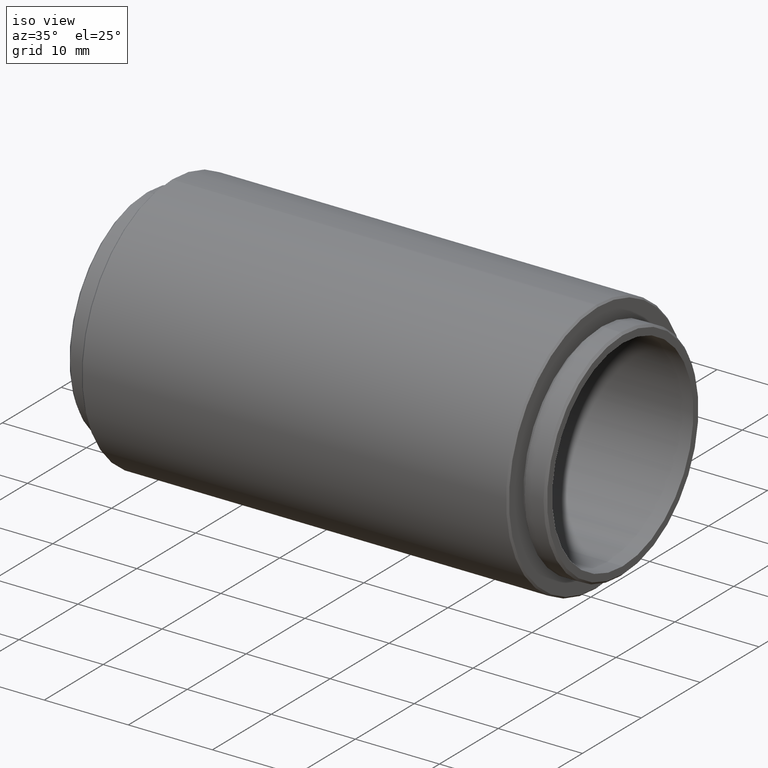
[diagram: clean part render]
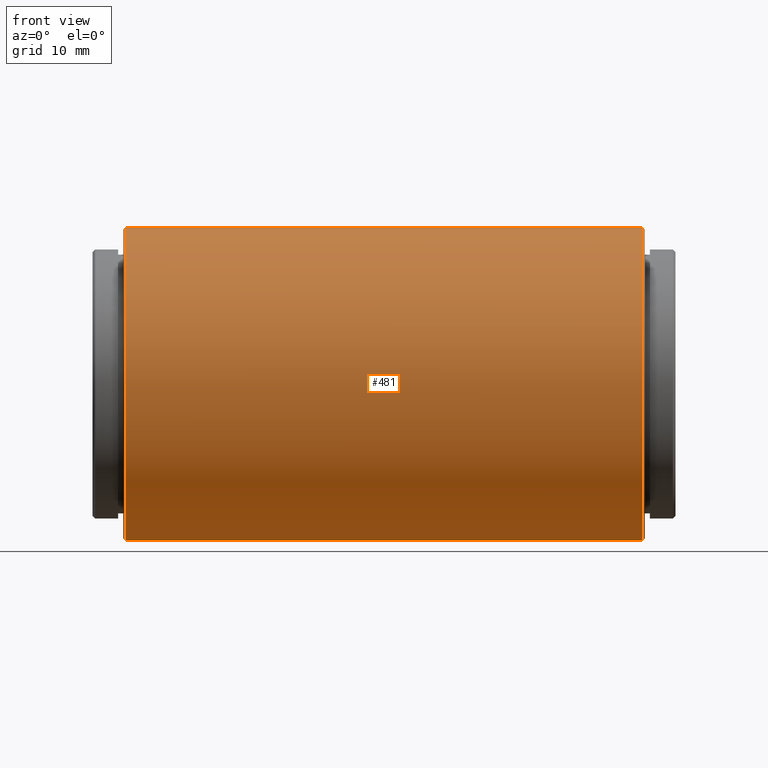
[diagram: tour spotlight — one face highlighted and labeled with its STEP entity id]
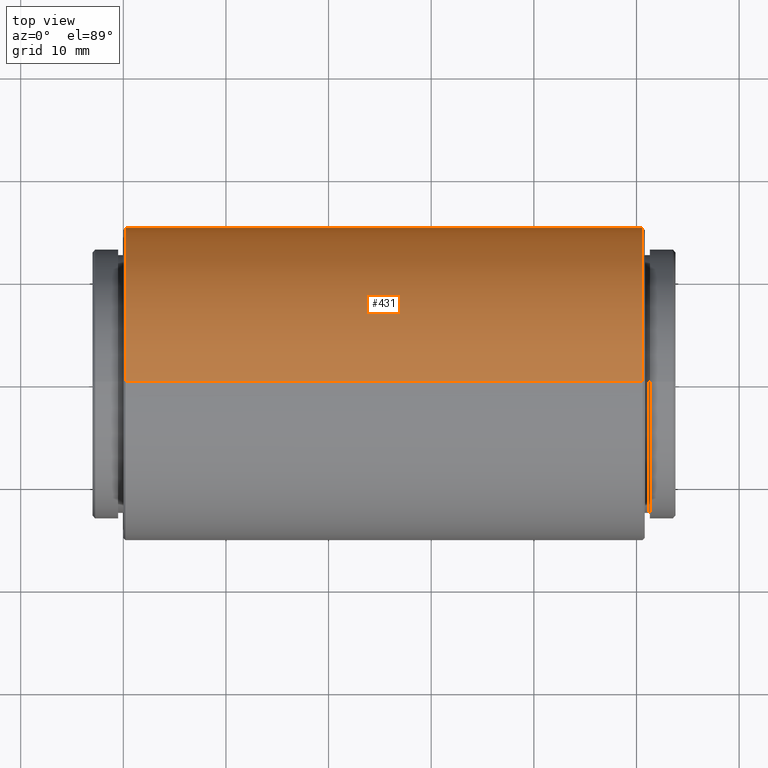
[diagram: tour spotlight — one face highlighted and labeled with its STEP entity id]
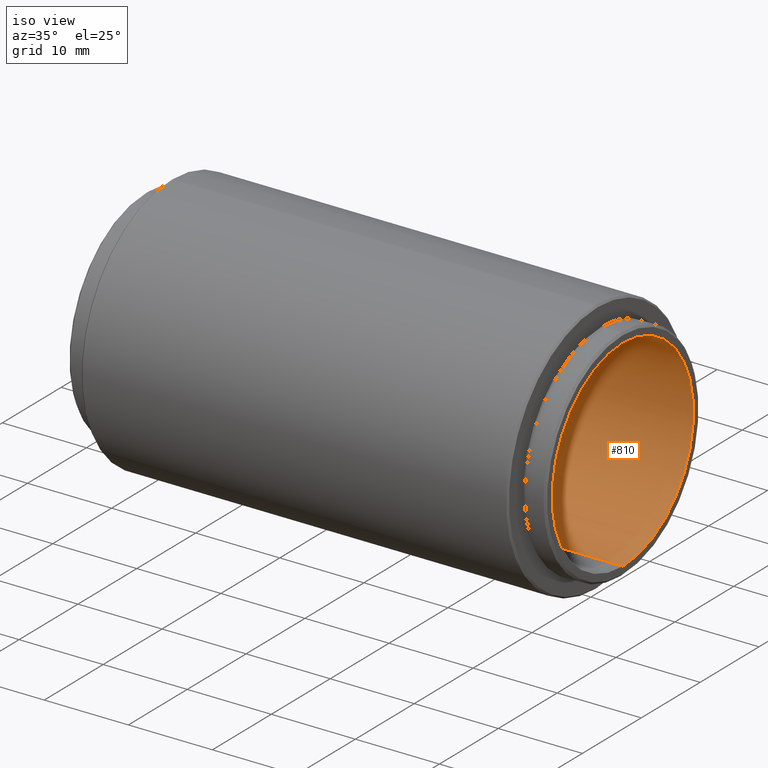
[diagram: tour spotlight — one face highlighted and labeled with its STEP entity id]
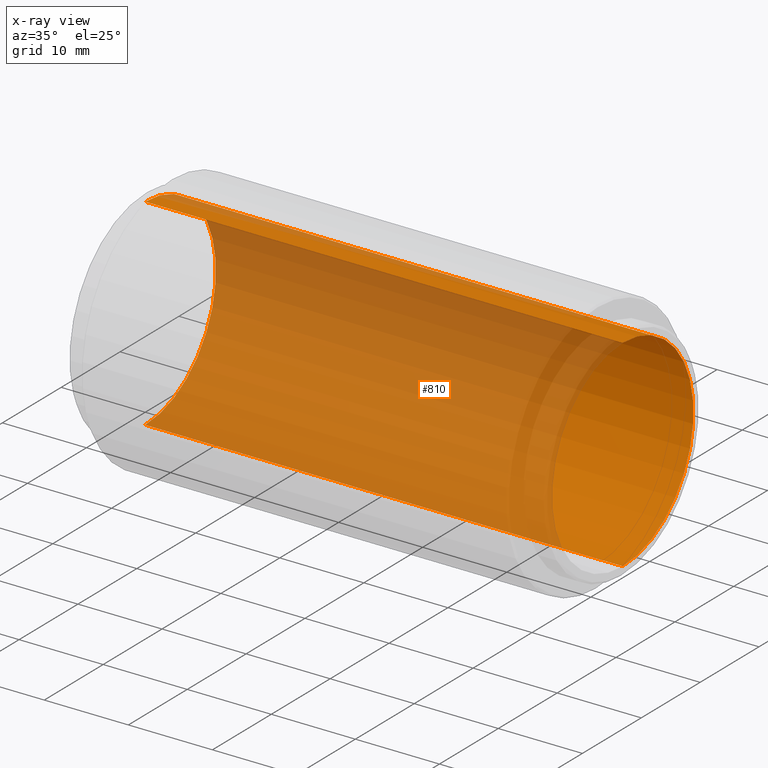
[diagram: x-ray of the same camera — body ghosted, this tour face saturated]
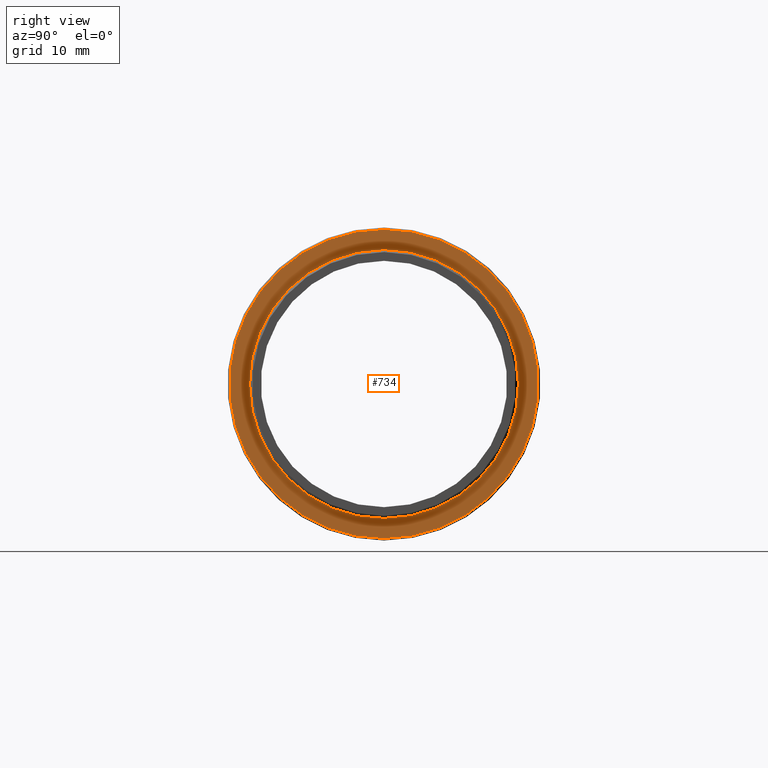
[diagram: tour spotlight — one face highlighted and labeled with its STEP entity id]
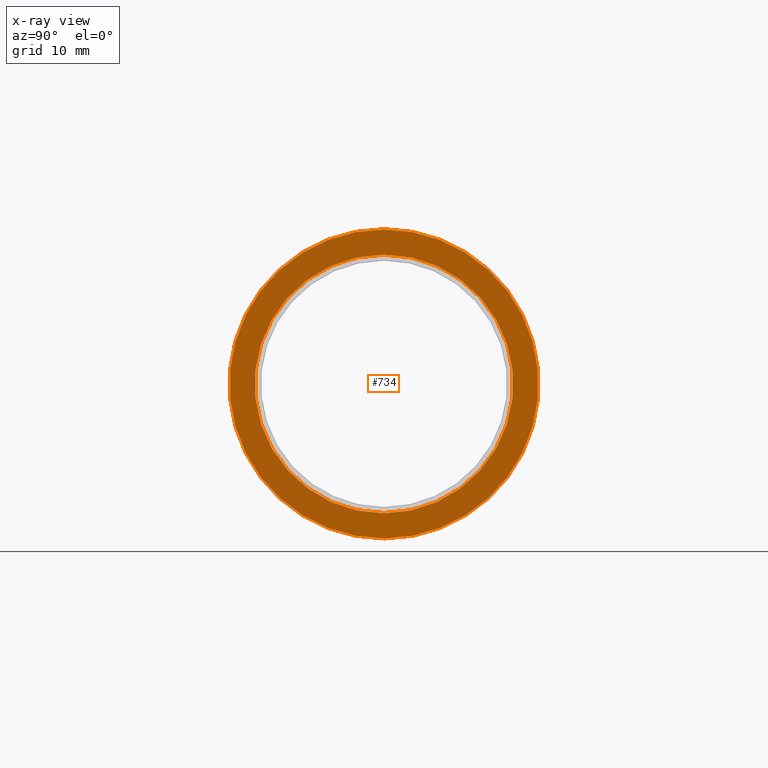
[diagram: x-ray of the same camera — body ghosted, this tour face saturated]
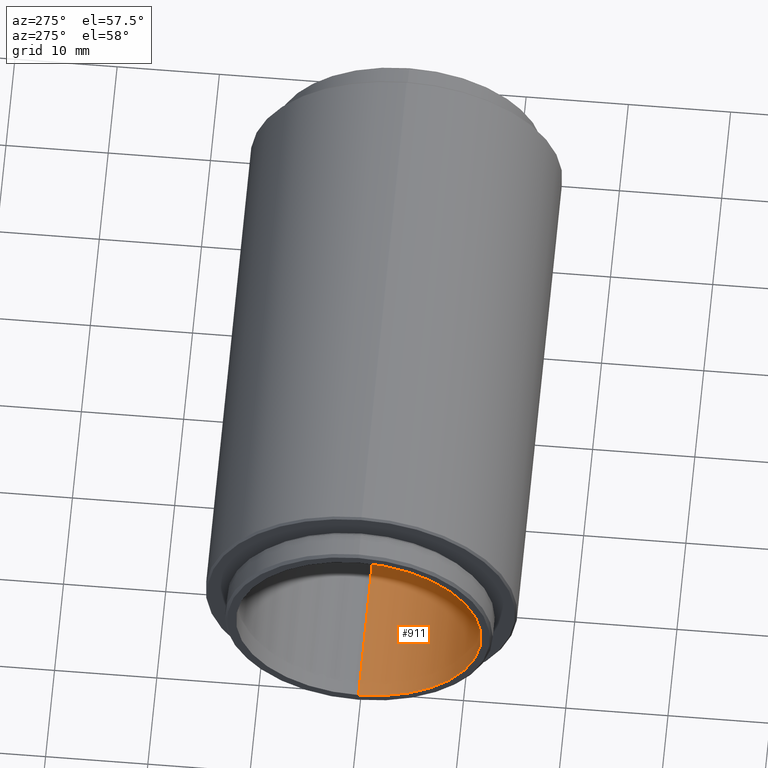
[diagram: tour spotlight — one face highlighted and labeled with its STEP entity id]
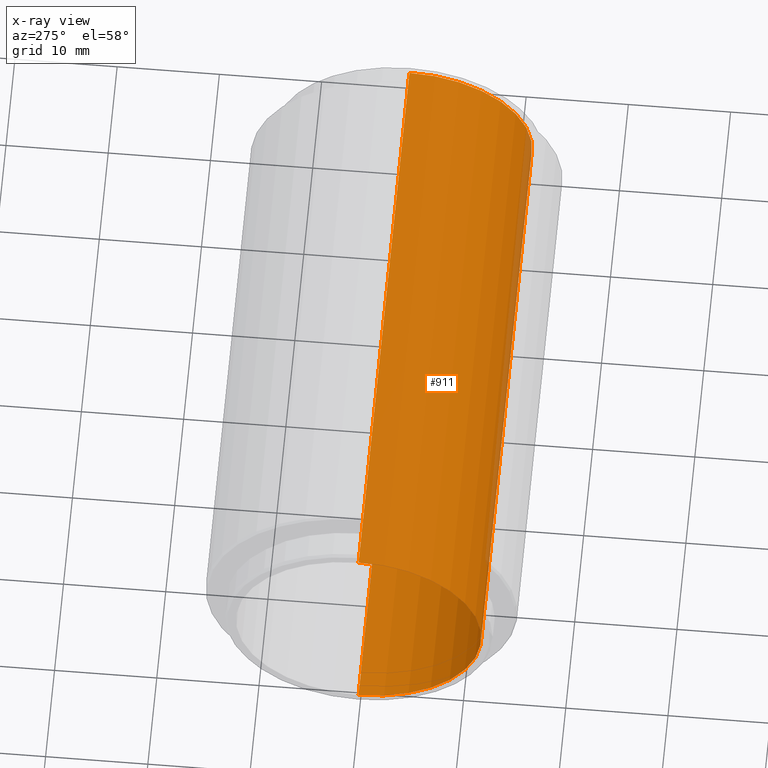
[diagram: x-ray of the same camera — body ghosted, this tour face saturated]
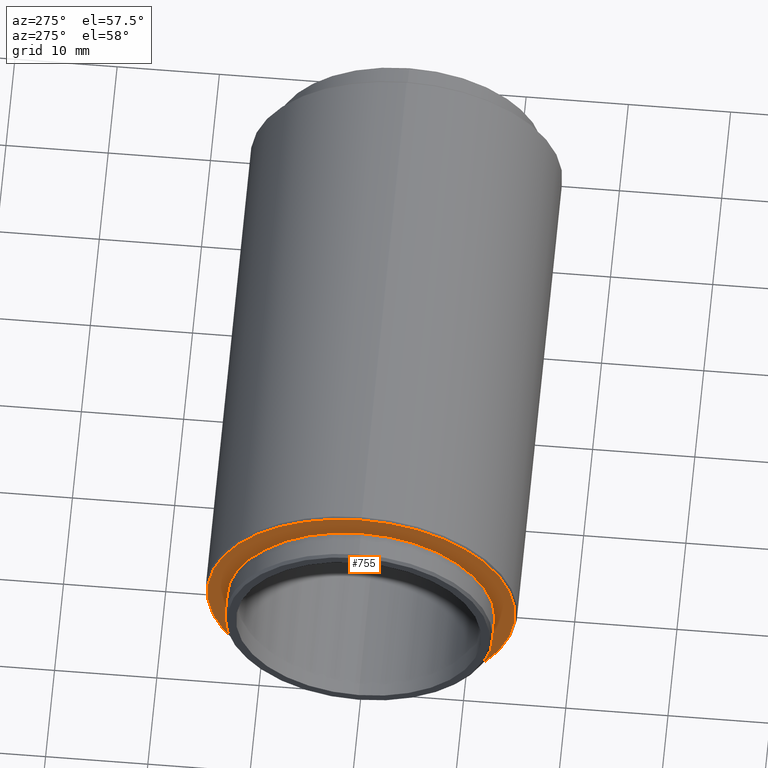
[diagram: tour spotlight — one face highlighted and labeled with its STEP entity id]
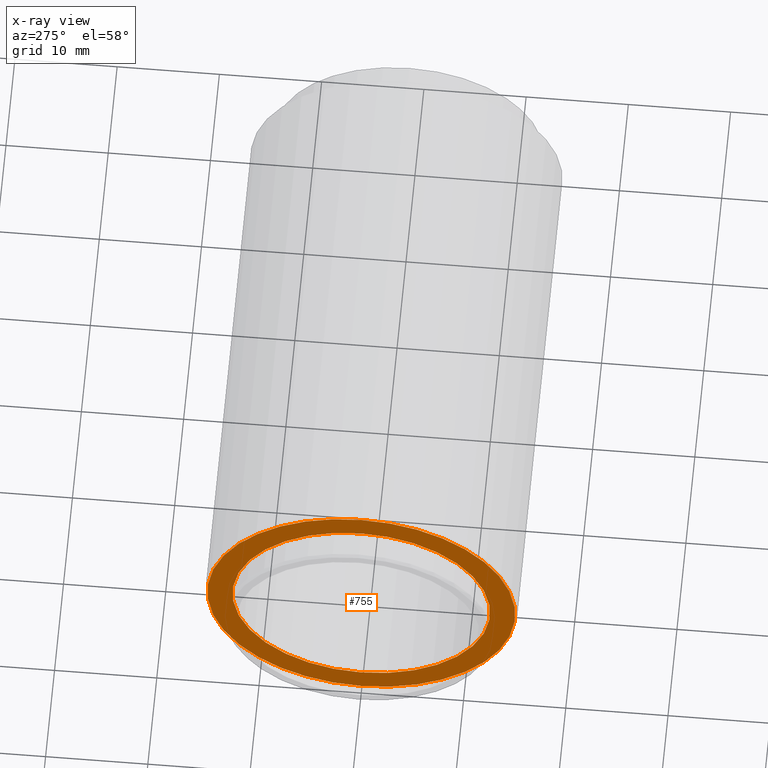
[diagram: x-ray of the same camera — body ghosted, this tour face saturated]
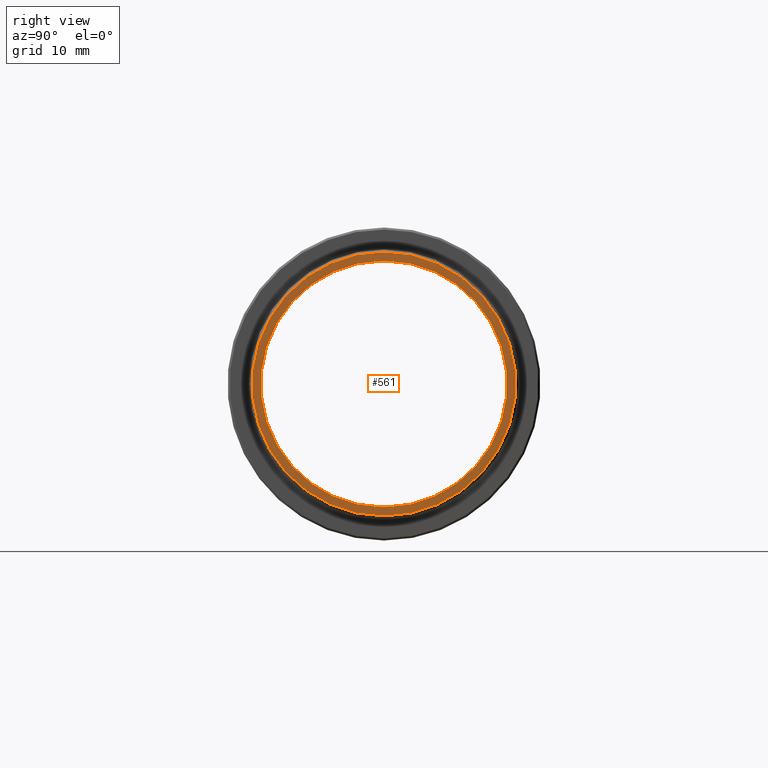
[diagram: tour spotlight — one face highlighted and labeled with its STEP entity id]
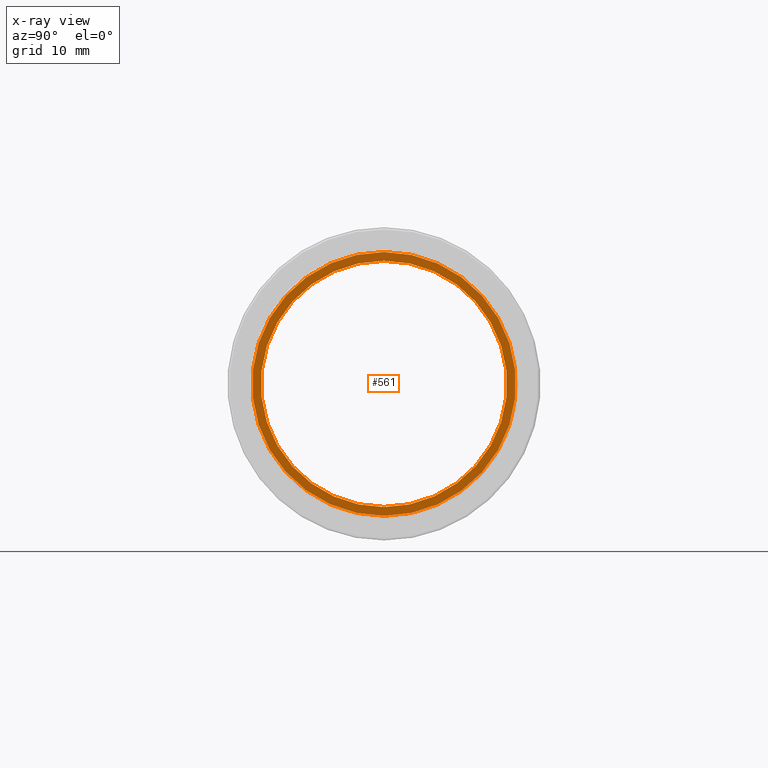
[diagram: x-ray of the same camera — body ghosted, this tour face saturated]
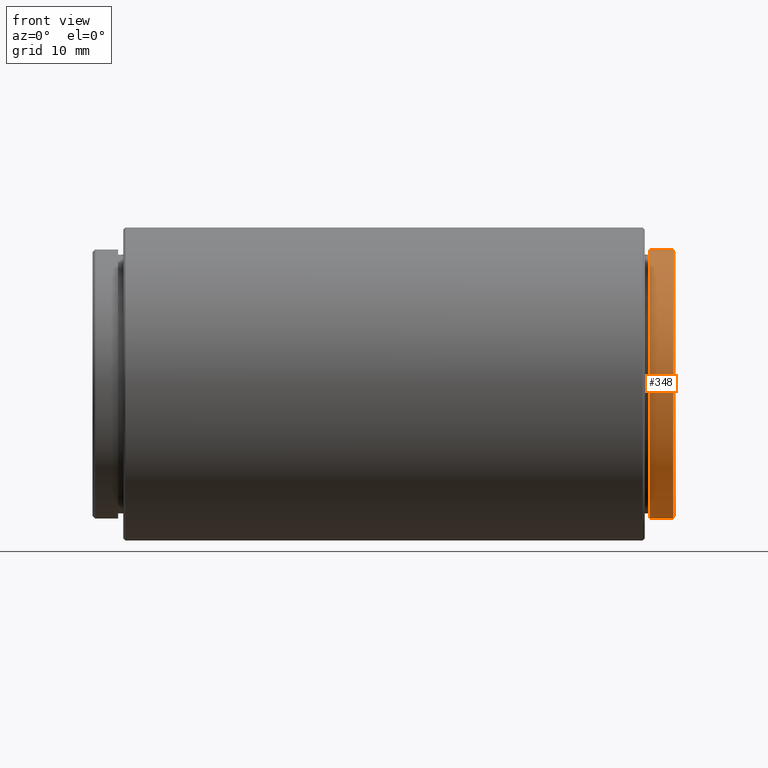
[diagram: tour spotlight — one face highlighted and labeled with its STEP entity id]
A machine part: a face-by-face anatomy tour. The part has 24 B-rep faces; the first image is the clean iso view, then the 8 largest visible faces are spotlighted one at a time (largest first), each with its STEP entity span.

Face 1 — front view, entity #481. In plain terms, the highlighted cylindrical surface (partial cylindrical patch) has radius 15.25 mm, axis along (-1, -0, -0).
Definition (entity closure, byte-faithful):
#28 = DIRECTION ( 'NONE',  ( 0.000000000000000000, 0.000000000000000000, -1.000000000000000000 ) ) ;
#30 = CARTESIAN_POINT ( 'NONE',  ( -49.79999999999999005, 0.000000000000000000, 0.000000000000000000 ) ) ;
#44 = EDGE_LOOP ( 'NONE', ( #630, #823, #489, #927 ) ) ;
#96 = CARTESIAN_POINT ( 'NONE',  ( -49.79999999999999005, 0.000000000000000000, 15.25000000000000000 ) ) ;
#115 = CARTESIAN_POINT ( 'NONE',  ( 0.6000000000000099698, 1.867586368699713770E-15, -15.25000000000000000 ) ) ;
#124 = EDGE_CURVE ( 'NONE', #719, #465, #960, .T. ) ;
#176 = FACE_OUTER_BOUND ( 'NONE', #44, .T. ) ;
#240 = DIRECTION ( 'NONE',  ( -1.000000000000000000, -0.000000000000000000, -0.000000000000000000 ) ) ;
#278 = CARTESIAN_POINT ( 'NONE',  ( 0.6000000000000099698, 0.000000000000000000, 0.000000000000000000 ) ) ;
#351 = LINE ( 'NONE', #679, #609 ) ;
#393 = AXIS2_PLACEMENT_3D ( 'NONE', #796, #240, #882 ) ;
#465 = VERTEX_POINT ( 'NONE', #895 ) ;
#481 = ADVANCED_FACE ( 'NONE', ( #176 ), #1036, .T. ) ;
#489 = ORIENTED_EDGE ( 'NONE', *, *, #509, .T. ) ;
#503 = DIRECTION ( 'NONE',  ( 1.000000000000000000, -0.000000000000000000, -0.000000000000000000 ) ) ;
#506 = VECTOR ( 'NONE', #971, 1000.000000000000000 ) ;
#509 = EDGE_CURVE ( 'NONE', #465, #512, #767, .T. ) ;
#512 = VERTEX_POINT ( 'NONE', #96 ) ;
#609 = VECTOR ( 'NONE', #994, 1000.000000000000000 ) ;
#630 = ORIENTED_EDGE ( 'NONE', *, *, #680, .F. ) ;
#661 = EDGE_CURVE ( 'NONE', #512, #671, #776, .T. ) ;
#671 = VERTEX_POINT ( 'NONE', #933 ) ;
#679 = CARTESIAN_POINT ( 'NONE',  ( 0.8000000000000000444, 1.867586368699713770E-15, -15.25000000000000000 ) ) ;
#680 = EDGE_CURVE ( 'NONE', #719, #671, #351, .T. ) ;
#719 = VERTEX_POINT ( 'NONE', #115 ) ;
#754 = DIRECTION ( 'NONE',  ( -1.000000000000000000, 0.000000000000000000, 0.000000000000000000 ) ) ;
#760 = DIRECTION ( 'NONE',  ( 0.000000000000000000, 0.000000000000000000, -1.000000000000000000 ) ) ;
#767 = LINE ( 'NONE', #829, #506 ) ;
#776 = CIRCLE ( 'NONE', #980, 15.25000000000000000 ) ;
#796 = CARTESIAN_POINT ( 'NONE',  ( 0.8000000000000000444, 0.000000000000000000, 0.000000000000000000 ) ) ;
#823 = ORIENTED_EDGE ( 'NONE', *, *, #124, .T. ) ;
#829 = CARTESIAN_POINT ( 'NONE',  ( 0.8000000000000000444, 0.000000000000000000, 15.25000000000000000 ) ) ;
#851 = AXIS2_PLACEMENT_3D ( 'NONE', #278, #754, #28 ) ;
#882 = DIRECTION ( 'NONE',  ( 0.000000000000000000, 0.000000000000000000, 1.000000000000000000 ) ) ;
#895 = CARTESIAN_POINT ( 'NONE',  ( 0.6000000000000099698, 0.000000000000000000, 15.25000000000000000 ) ) ;
#927 = ORIENTED_EDGE ( 'NONE', *, *, #661, .T. ) ;
#933 = CARTESIAN_POINT ( 'NONE',  ( -49.79999999999999005, 1.867586368699713770E-15, -15.25000000000000000 ) ) ;
#960 = CIRCLE ( 'NONE', #851, 15.25000000000000000 ) ;
#971 = DIRECTION ( 'NONE',  ( -1.000000000000000000, -0.000000000000000000, -0.000000000000000000 ) ) ;
#980 = AXIS2_PLACEMENT_3D ( 'NONE', #30, #503, #760 ) ;
#994 = DIRECTION ( 'NONE',  ( -1.000000000000000000, -0.000000000000000000, -0.000000000000000000 ) ) ;
#1036 = CYLINDRICAL_SURFACE ( 'NONE', #393, 15.25000000000000000 ) ;

Face 2 — top view, entity #431. In plain terms, the highlighted cylindrical surface (partial cylindrical patch) has radius 15.25 mm, axis along (-1, -0, -0).
Definition (entity closure, byte-faithful):
#45 = DIRECTION ( 'NONE',  ( 0.000000000000000000, 0.000000000000000000, -1.000000000000000000 ) ) ;
#70 = ORIENTED_EDGE ( 'NONE', *, *, #736, .T. ) ;
#96 = CARTESIAN_POINT ( 'NONE',  ( -49.79999999999999005, 0.000000000000000000, 15.25000000000000000 ) ) ;
#115 = CARTESIAN_POINT ( 'NONE',  ( 0.6000000000000099698, 1.867586368699713770E-15, -15.25000000000000000 ) ) ;
#165 = DIRECTION ( 'NONE',  ( 0.000000000000000000, 0.000000000000000000, 1.000000000000000000 ) ) ;
#204 = EDGE_LOOP ( 'NONE', ( #70, #1011, #222, #395 ) ) ;
#222 = ORIENTED_EDGE ( 'NONE', *, *, #821, .T. ) ;
#230 = FACE_OUTER_BOUND ( 'NONE', #204, .T. ) ;
#244 = DIRECTION ( 'NONE',  ( -1.000000000000000000, -0.000000000000000000, -0.000000000000000000 ) ) ;
#351 = LINE ( 'NONE', #679, #609 ) ;
#362 = CIRCLE ( 'NONE', #655, 15.25000000000000000 ) ;
#395 = ORIENTED_EDGE ( 'NONE', *, *, #509, .F. ) ;
#431 = ADVANCED_FACE ( 'NONE', ( #230 ), #438, .T. ) ;
#438 = CYLINDRICAL_SURFACE ( 'NONE', #573, 15.25000000000000000 ) ;
#458 = CIRCLE ( 'NONE', #587, 15.25000000000000000 ) ;
#465 = VERTEX_POINT ( 'NONE', #895 ) ;
#506 = VECTOR ( 'NONE', #971, 1000.000000000000000 ) ;
#509 = EDGE_CURVE ( 'NONE', #465, #512, #767, .T. ) ;
#512 = VERTEX_POINT ( 'NONE', #96 ) ;
#573 = AXIS2_PLACEMENT_3D ( 'NONE', #804, #244, #165 ) ;
#587 = AXIS2_PLACEMENT_3D ( 'NONE', #859, #768, #45 ) ;
#609 = VECTOR ( 'NONE', #994, 1000.000000000000000 ) ;
#636 = CARTESIAN_POINT ( 'NONE',  ( -49.79999999999999005, 0.000000000000000000, 0.000000000000000000 ) ) ;
#655 = AXIS2_PLACEMENT_3D ( 'NONE', #636, #712, #792 ) ;
#671 = VERTEX_POINT ( 'NONE', #933 ) ;
#679 = CARTESIAN_POINT ( 'NONE',  ( 0.8000000000000000444, 1.867586368699713770E-15, -15.25000000000000000 ) ) ;
#680 = EDGE_CURVE ( 'NONE', #719, #671, #351, .T. ) ;
#712 = DIRECTION ( 'NONE',  ( 1.000000000000000000, -0.000000000000000000, -0.000000000000000000 ) ) ;
#719 = VERTEX_POINT ( 'NONE', #115 ) ;
#736 = EDGE_CURVE ( 'NONE', #465, #719, #458, .T. ) ;
#767 = LINE ( 'NONE', #829, #506 ) ;
#768 = DIRECTION ( 'NONE',  ( -1.000000000000000000, 0.000000000000000000, 0.000000000000000000 ) ) ;
#792 = DIRECTION ( 'NONE',  ( 0.000000000000000000, 0.000000000000000000, -1.000000000000000000 ) ) ;
#804 = CARTESIAN_POINT ( 'NONE',  ( 0.8000000000000000444, 0.000000000000000000, 0.000000000000000000 ) ) ;
#821 = EDGE_CURVE ( 'NONE', #671, #512, #362, .T. ) ;
#829 = CARTESIAN_POINT ( 'NONE',  ( 0.8000000000000000444, 0.000000000000000000, 15.25000000000000000 ) ) ;
#859 = CARTESIAN_POINT ( 'NONE',  ( 0.6000000000000099698, 0.000000000000000000, 0.000000000000000000 ) ) ;
#895 = CARTESIAN_POINT ( 'NONE',  ( 0.6000000000000099698, 0.000000000000000000, 15.25000000000000000 ) ) ;
#933 = CARTESIAN_POINT ( 'NONE',  ( -49.79999999999999005, 1.867586368699713770E-15, -15.25000000000000000 ) ) ;
#971 = DIRECTION ( 'NONE',  ( -1.000000000000000000, -0.000000000000000000, -0.000000000000000000 ) ) ;
#994 = DIRECTION ( 'NONE',  ( -1.000000000000000000, -0.000000000000000000, -0.000000000000000000 ) ) ;
#1011 = ORIENTED_EDGE ( 'NONE', *, *, #680, .T. ) ;

Face 3 — iso view, entity #810. An x-ray twin of the same camera follows (body ghosted, this face saturated) — the face is partly hidden behind the body. In plain terms, the highlighted cylindrical surface (partial cylindrical patch) has radius 12 mm, axis along (1, -0, -0).
Definition (entity closure, byte-faithful):
#29 = ORIENTED_EDGE ( 'NONE', *, *, #424, .F. ) ;
#32 = DIRECTION ( 'NONE',  ( 1.000000000000000000, 0.000000000000000000, 0.000000000000000000 ) ) ;
#83 = CIRCLE ( 'NONE', #907, 12.00000000000000178 ) ;
#128 = LINE ( 'NONE', #753, #743 ) ;
#132 = VERTEX_POINT ( 'NONE', #920 ) ;
#154 = EDGE_CURVE ( 'NONE', #629, #982, #886, .T. ) ;
#172 = EDGE_CURVE ( 'NONE', #132, #982, #914, .T. ) ;
#189 = DIRECTION ( 'NONE',  ( 0.000000000000000000, 0.000000000000000000, -1.000000000000000000 ) ) ;
#200 = CYLINDRICAL_SURFACE ( 'NONE', #594, 12.00000000000000178 ) ;
#251 = CARTESIAN_POINT ( 'NONE',  ( 3.799999999999999822, 1.469576158976824144E-15, 12.00000000000000178 ) ) ;
#288 = CARTESIAN_POINT ( 'NONE',  ( -53.00000000000000711, 0.000000000000000000, -12.00000000000000178 ) ) ;
#415 = FACE_OUTER_BOUND ( 'NONE', #420, .T. ) ;
#420 = EDGE_LOOP ( 'NONE', ( #564, #29, #549, #641 ) ) ;
#424 = EDGE_CURVE ( 'NONE', #747, #132, #83, .T. ) ;
#542 = DIRECTION ( 'NONE',  ( 1.000000000000000000, -0.000000000000000000, -0.000000000000000000 ) ) ;
#547 = CARTESIAN_POINT ( 'NONE',  ( -53.00000000000000711, 0.000000000000000000, 0.000000000000000000 ) ) ;
#549 = ORIENTED_EDGE ( 'NONE', *, *, #694, .T. ) ;
#552 = DIRECTION ( 'NONE',  ( 1.000000000000000000, 0.000000000000000000, 0.000000000000000000 ) ) ;
#564 = ORIENTED_EDGE ( 'NONE', *, *, #172, .F. ) ;
#586 = CARTESIAN_POINT ( 'NONE',  ( 3.799999999999999822, 0.000000000000000000, 0.000000000000000000 ) ) ;
#591 = CARTESIAN_POINT ( 'NONE',  ( 3.799999999999999822, 0.000000000000000000, -12.00000000000000178 ) ) ;
#594 = AXIS2_PLACEMENT_3D ( 'NONE', #547, #542, #877 ) ;
#629 = VERTEX_POINT ( 'NONE', #591 ) ;
#640 = VECTOR ( 'NONE', #912, 1000.000000000000000 ) ;
#641 = ORIENTED_EDGE ( 'NONE', *, *, #154, .T. ) ;
#642 = CARTESIAN_POINT ( 'NONE',  ( -53.00000000000000711, 0.000000000000000000, 0.000000000000000000 ) ) ;
#669 = AXIS2_PLACEMENT_3D ( 'NONE', #586, #32, #189 ) ;
#694 = EDGE_CURVE ( 'NONE', #747, #629, #128, .T. ) ;
#716 = DIRECTION ( 'NONE',  ( 0.000000000000000000, 0.000000000000000000, -1.000000000000000000 ) ) ;
#743 = VECTOR ( 'NONE', #842, 1000.000000000000000 ) ;
#747 = VERTEX_POINT ( 'NONE', #288 ) ;
#753 = CARTESIAN_POINT ( 'NONE',  ( -53.00000000000000711, 0.000000000000000000, -12.00000000000000178 ) ) ;
#810 = ADVANCED_FACE ( 'NONE', ( #415 ), #200, .F. ) ;
#835 = CARTESIAN_POINT ( 'NONE',  ( -53.00000000000000711, 1.469576158976824144E-15, 12.00000000000000178 ) ) ;
#842 = DIRECTION ( 'NONE',  ( 1.000000000000000000, -0.000000000000000000, -0.000000000000000000 ) ) ;
#877 = DIRECTION ( 'NONE',  ( 0.000000000000000000, 0.000000000000000000, -1.000000000000000000 ) ) ;
#886 = CIRCLE ( 'NONE', #669, 12.00000000000000178 ) ;
#907 = AXIS2_PLACEMENT_3D ( 'NONE', #642, #552, #716 ) ;
#912 = DIRECTION ( 'NONE',  ( 1.000000000000000000, -0.000000000000000000, -0.000000000000000000 ) ) ;
#914 = LINE ( 'NONE', #835, #640 ) ;
#920 = CARTESIAN_POINT ( 'NONE',  ( -53.00000000000000711, 1.469576158976824144E-15, 12.00000000000000178 ) ) ;
#982 = VERTEX_POINT ( 'NONE', #251 ) ;

Face 4 — right view, entity #734. An x-ray twin of the same camera follows (body ghosted, this face saturated) — the face is partly hidden behind the body. In plain terms, the highlighted planar face has unit normal (1, 0, 0).
Definition (entity closure, byte-faithful):
#16 = ORIENTED_EDGE ( 'NONE', *, *, #297, .F. ) ;
#19 = DIRECTION ( 'NONE',  ( 1.000000000000000000, 0.000000000000000000, 0.000000000000000000 ) ) ;
#47 = DIRECTION ( 'NONE',  ( 0.000000000000000000, 0.000000000000000000, -1.000000000000000000 ) ) ;
#72 = EDGE_LOOP ( 'NONE', ( #112, #762 ) ) ;
#98 = VERTEX_POINT ( 'NONE', #830 ) ;
#112 = ORIENTED_EDGE ( 'NONE', *, *, #502, .T. ) ;
#178 = VERTEX_POINT ( 'NONE', #346 ) ;
#191 = CIRCLE ( 'NONE', #1051, 12.60000000000000142 ) ;
#273 = AXIS2_PLACEMENT_3D ( 'NONE', #817, #19, #976 ) ;
#293 = CIRCLE ( 'NONE', #774, 15.05000000000001492 ) ;
#297 = EDGE_CURVE ( 'NONE', #98, #487, #191, .T. ) ;
#300 = FACE_OUTER_BOUND ( 'NONE', #72, .T. ) ;
#321 = ORIENTED_EDGE ( 'NONE', *, *, #566, .F. ) ;
#346 = CARTESIAN_POINT ( 'NONE',  ( 0.8000000000000000444, 1.855339900708241202E-15, -15.05000000000001492 ) ) ;
#358 = AXIS2_PLACEMENT_3D ( 'NONE', #427, #650, #483 ) ;
#369 = EDGE_CURVE ( 'NONE', #178, #672, #293, .T. ) ;
#388 = CARTESIAN_POINT ( 'NONE',  ( 0.8000000000000000444, 0.000000000000000000, 0.000000000000000000 ) ) ;
#403 = CARTESIAN_POINT ( 'NONE',  ( 0.8000000000000000444, 0.000000000000000000, 12.60000000000000142 ) ) ;
#427 = CARTESIAN_POINT ( 'NONE',  ( 0.8000000000000000444, 0.000000000000000000, 0.000000000000000000 ) ) ;
#434 = CARTESIAN_POINT ( 'NONE',  ( 0.8000000000000000444, 0.000000000000000000, 15.05000000000001492 ) ) ;
#483 = DIRECTION ( 'NONE',  ( 0.000000000000000000, 0.000000000000000000, -1.000000000000000000 ) ) ;
#487 = VERTEX_POINT ( 'NONE', #403 ) ;
#498 = EDGE_LOOP ( 'NONE', ( #321, #16 ) ) ;
#502 = EDGE_CURVE ( 'NONE', #672, #178, #545, .T. ) ;
#529 = AXIS2_PLACEMENT_3D ( 'NONE', #1008, #862, #47 ) ;
#545 = CIRCLE ( 'NONE', #273, 15.05000000000001492 ) ;
#566 = EDGE_CURVE ( 'NONE', #487, #98, #867, .T. ) ;
#618 = DIRECTION ( 'NONE',  ( 0.000000000000000000, 0.000000000000000000, -1.000000000000000000 ) ) ;
#625 = DIRECTION ( 'NONE',  ( 0.000000000000000000, 0.000000000000000000, -1.000000000000000000 ) ) ;
#650 = DIRECTION ( 'NONE',  ( 1.000000000000000000, 0.000000000000000000, 0.000000000000000000 ) ) ;
#672 = VERTEX_POINT ( 'NONE', #434 ) ;
#677 = FACE_BOUND ( 'NONE', #498, .T. ) ;
#685 = PLANE ( 'NONE',  #529 ) ;
#704 = DIRECTION ( 'NONE',  ( 1.000000000000000000, 0.000000000000000000, 0.000000000000000000 ) ) ;
#734 = ADVANCED_FACE ( 'NONE', ( #300, #677 ), #685, .T. ) ;
#762 = ORIENTED_EDGE ( 'NONE', *, *, #369, .T. ) ;
#774 = AXIS2_PLACEMENT_3D ( 'NONE', #869, #787, #618 ) ;
#787 = DIRECTION ( 'NONE',  ( 1.000000000000000000, 0.000000000000000000, 0.000000000000000000 ) ) ;
#817 = CARTESIAN_POINT ( 'NONE',  ( 0.8000000000000000444, 0.000000000000000000, 0.000000000000000000 ) ) ;
#830 = CARTESIAN_POINT ( 'NONE',  ( 0.8000000000000000444, 1.543054966925665273E-15, -12.60000000000000142 ) ) ;
#862 = DIRECTION ( 'NONE',  ( 1.000000000000000000, 0.000000000000000000, 0.000000000000000000 ) ) ;
#867 = CIRCLE ( 'NONE', #358, 12.60000000000000142 ) ;
#869 = CARTESIAN_POINT ( 'NONE',  ( 0.8000000000000000444, 0.000000000000000000, 0.000000000000000000 ) ) ;
#976 = DIRECTION ( 'NONE',  ( 0.000000000000000000, 0.000000000000000000, -1.000000000000000000 ) ) ;
#1008 = CARTESIAN_POINT ( 'NONE',  ( 0.8000000000000000444, 0.000000000000000000, 0.000000000000000000 ) ) ;
#1051 = AXIS2_PLACEMENT_3D ( 'NONE', #388, #704, #625 ) ;

Face 5 — auxiliary view, entity #911. An x-ray twin of the same camera follows (body ghosted, this face saturated) — the face is partly hidden behind the body. In plain terms, the highlighted cylindrical surface (partial cylindrical patch) has radius 12 mm, axis along (1, -0, -0).
Definition (entity closure, byte-faithful):
#6 = DIRECTION ( 'NONE',  ( 0.000000000000000000, 0.000000000000000000, -1.000000000000000000 ) ) ;
#78 = CARTESIAN_POINT ( 'NONE',  ( -53.00000000000000711, 0.000000000000000000, 0.000000000000000000 ) ) ;
#113 = CIRCLE ( 'NONE', #266, 12.00000000000000178 ) ;
#128 = LINE ( 'NONE', #753, #743 ) ;
#132 = VERTEX_POINT ( 'NONE', #920 ) ;
#143 = ORIENTED_EDGE ( 'NONE', *, *, #694, .F. ) ;
#172 = EDGE_CURVE ( 'NONE', #132, #982, #914, .T. ) ;
#177 = DIRECTION ( 'NONE',  ( 0.000000000000000000, 0.000000000000000000, -1.000000000000000000 ) ) ;
#187 = CIRCLE ( 'NONE', #919, 12.00000000000000178 ) ;
#233 = DIRECTION ( 'NONE',  ( 1.000000000000000000, 0.000000000000000000, 0.000000000000000000 ) ) ;
#237 = DIRECTION ( 'NONE',  ( 0.000000000000000000, 0.000000000000000000, -1.000000000000000000 ) ) ;
#251 = CARTESIAN_POINT ( 'NONE',  ( 3.799999999999999822, 1.469576158976824144E-15, 12.00000000000000178 ) ) ;
#262 = CARTESIAN_POINT ( 'NONE',  ( 3.799999999999999822, 0.000000000000000000, 0.000000000000000000 ) ) ;
#266 = AXIS2_PLACEMENT_3D ( 'NONE', #262, #488, #177 ) ;
#288 = CARTESIAN_POINT ( 'NONE',  ( -53.00000000000000711, 0.000000000000000000, -12.00000000000000178 ) ) ;
#469 = CARTESIAN_POINT ( 'NONE',  ( -53.00000000000000711, 0.000000000000000000, 0.000000000000000000 ) ) ;
#488 = DIRECTION ( 'NONE',  ( 1.000000000000000000, 0.000000000000000000, 0.000000000000000000 ) ) ;
#491 = EDGE_CURVE ( 'NONE', #982, #629, #113, .T. ) ;
#504 = CYLINDRICAL_SURFACE ( 'NONE', #870, 12.00000000000000178 ) ;
#590 = EDGE_LOOP ( 'NONE', ( #686, #904, #950, #143 ) ) ;
#591 = CARTESIAN_POINT ( 'NONE',  ( 3.799999999999999822, 0.000000000000000000, -12.00000000000000178 ) ) ;
#629 = VERTEX_POINT ( 'NONE', #591 ) ;
#640 = VECTOR ( 'NONE', #912, 1000.000000000000000 ) ;
#686 = ORIENTED_EDGE ( 'NONE', *, *, #857, .F. ) ;
#694 = EDGE_CURVE ( 'NONE', #747, #629, #128, .T. ) ;
#714 = DIRECTION ( 'NONE',  ( 1.000000000000000000, -0.000000000000000000, -0.000000000000000000 ) ) ;
#743 = VECTOR ( 'NONE', #842, 1000.000000000000000 ) ;
#747 = VERTEX_POINT ( 'NONE', #288 ) ;
#753 = CARTESIAN_POINT ( 'NONE',  ( -53.00000000000000711, 0.000000000000000000, -12.00000000000000178 ) ) ;
#835 = CARTESIAN_POINT ( 'NONE',  ( -53.00000000000000711, 1.469576158976824144E-15, 12.00000000000000178 ) ) ;
#842 = DIRECTION ( 'NONE',  ( 1.000000000000000000, -0.000000000000000000, -0.000000000000000000 ) ) ;
#855 = FACE_OUTER_BOUND ( 'NONE', #590, .T. ) ;
#857 = EDGE_CURVE ( 'NONE', #132, #747, #187, .T. ) ;
#870 = AXIS2_PLACEMENT_3D ( 'NONE', #78, #714, #6 ) ;
#904 = ORIENTED_EDGE ( 'NONE', *, *, #172, .T. ) ;
#911 = ADVANCED_FACE ( 'NONE', ( #855 ), #504, .F. ) ;
#912 = DIRECTION ( 'NONE',  ( 1.000000000000000000, -0.000000000000000000, -0.000000000000000000 ) ) ;
#914 = LINE ( 'NONE', #835, #640 ) ;
#919 = AXIS2_PLACEMENT_3D ( 'NONE', #469, #233, #237 ) ;
#920 = CARTESIAN_POINT ( 'NONE',  ( -53.00000000000000711, 1.469576158976824144E-15, 12.00000000000000178 ) ) ;
#950 = ORIENTED_EDGE ( 'NONE', *, *, #491, .T. ) ;
#982 = VERTEX_POINT ( 'NONE', #251 ) ;

Face 6 — auxiliary view, entity #755. An x-ray twin of the same camera follows (body ghosted, this face saturated) — the face is partly hidden behind the body. In plain terms, the highlighted planar face has unit normal (1, 0, 0).
Definition (entity closure, byte-faithful):
#2 = VERTEX_POINT ( 'NONE', #416 ) ;
#10 = CARTESIAN_POINT ( 'NONE',  ( -50.00000000000000000, 0.000000000000000000, 0.000000000000000000 ) ) ;
#35 = CARTESIAN_POINT ( 'NONE',  ( -50.00000000000000000, 0.000000000000000000, 0.000000000000000000 ) ) ;
#75 = AXIS2_PLACEMENT_3D ( 'NONE', #298, #698, #442 ) ;
#84 = DIRECTION ( 'NONE',  ( -1.000000000000000000, -0.000000000000000000, -0.000000000000000000 ) ) ;
#114 = FACE_BOUND ( 'NONE', #1027, .T. ) ;
#159 = DIRECTION ( 'NONE',  ( 0.000000000000000000, 0.000000000000000000, -1.000000000000000000 ) ) ;
#164 = ORIENTED_EDGE ( 'NONE', *, *, #1003, .T. ) ;
#218 = CIRCLE ( 'NONE', #653, 15.04999999999999361 ) ;
#234 = VERTEX_POINT ( 'NONE', #282 ) ;
#246 = EDGE_CURVE ( 'NONE', #234, #849, #781, .T. ) ;
#247 = EDGE_LOOP ( 'NONE', ( #164, #902 ) ) ;
#256 = DIRECTION ( 'NONE',  ( 1.000000000000000000, -0.000000000000000000, -0.000000000000000000 ) ) ;
#282 = CARTESIAN_POINT ( 'NONE',  ( -50.00000000000000000, 1.543054966925665273E-15, 12.60000000000000142 ) ) ;
#298 = CARTESIAN_POINT ( 'NONE',  ( -49.99999999999999289, 0.000000000000000000, 0.000000000000000000 ) ) ;
#350 = EDGE_CURVE ( 'NONE', #599, #2, #218, .T. ) ;
#398 = CARTESIAN_POINT ( 'NONE',  ( -49.99999999999999289, 0.000000000000000000, 0.000000000000000000 ) ) ;
#416 = CARTESIAN_POINT ( 'NONE',  ( -49.99999999999999289, 0.000000000000000000, -15.04999999999999361 ) ) ;
#442 = DIRECTION ( 'NONE',  ( 0.000000000000000000, 0.000000000000000000, -1.000000000000000000 ) ) ;
#445 = AXIS2_PLACEMENT_3D ( 'NONE', #10, #256, #897 ) ;
#543 = EDGE_CURVE ( 'NONE', #849, #234, #818, .T. ) ;
#599 = VERTEX_POINT ( 'NONE', #673 ) ;
#620 = CARTESIAN_POINT ( 'NONE',  ( -50.00000000000000000, 0.000000000000000000, -12.60000000000000142 ) ) ;
#628 = DIRECTION ( 'NONE',  ( -1.000000000000000000, -0.000000000000000000, -0.000000000000000000 ) ) ;
#653 = AXIS2_PLACEMENT_3D ( 'NONE', #710, #628, #875 ) ;
#673 = CARTESIAN_POINT ( 'NONE',  ( -49.99999999999999289, 1.855339900708239624E-15, 15.04999999999999361 ) ) ;
#698 = DIRECTION ( 'NONE',  ( 1.000000000000000000, 0.000000000000000000, 0.000000000000000000 ) ) ;
#710 = CARTESIAN_POINT ( 'NONE',  ( -49.99999999999999289, 0.000000000000000000, 0.000000000000000000 ) ) ;
#711 = AXIS2_PLACEMENT_3D ( 'NONE', #398, #84, #159 ) ;
#755 = ADVANCED_FACE ( 'NONE', ( #966, #114 ), #779, .F. ) ;
#779 = PLANE ( 'NONE',  #75 ) ;
#781 = CIRCLE ( 'NONE', #1035, 12.60000000000000142 ) ;
#818 = CIRCLE ( 'NONE', #445, 12.60000000000000142 ) ;
#849 = VERTEX_POINT ( 'NONE', #620 ) ;
#852 = DIRECTION ( 'NONE',  ( 1.000000000000000000, -0.000000000000000000, -0.000000000000000000 ) ) ;
#860 = ORIENTED_EDGE ( 'NONE', *, *, #543, .T. ) ;
#875 = DIRECTION ( 'NONE',  ( 0.000000000000000000, 0.000000000000000000, -1.000000000000000000 ) ) ;
#897 = DIRECTION ( 'NONE',  ( 0.000000000000000000, 0.000000000000000000, -1.000000000000000000 ) ) ;
#902 = ORIENTED_EDGE ( 'NONE', *, *, #350, .T. ) ;
#940 = ORIENTED_EDGE ( 'NONE', *, *, #246, .T. ) ;
#966 = FACE_OUTER_BOUND ( 'NONE', #247, .T. ) ;
#1003 = EDGE_CURVE ( 'NONE', #2, #599, #1006, .T. ) ;
#1006 = CIRCLE ( 'NONE', #711, 15.04999999999999361 ) ;
#1016 = DIRECTION ( 'NONE',  ( 0.000000000000000000, 0.000000000000000000, -1.000000000000000000 ) ) ;
#1027 = EDGE_LOOP ( 'NONE', ( #860, #940 ) ) ;
#1035 = AXIS2_PLACEMENT_3D ( 'NONE', #35, #852, #1016 ) ;

Face 7 — right view, entity #561. An x-ray twin of the same camera follows (body ghosted, this face saturated) — the face is partly hidden behind the body. In plain terms, the highlighted planar face has unit normal (1, 0, 0).
Definition (entity closure, byte-faithful):
#31 = EDGE_LOOP ( 'NONE', ( #761, #889 ) ) ;
#32 = DIRECTION ( 'NONE',  ( 1.000000000000000000, 0.000000000000000000, 0.000000000000000000 ) ) ;
#46 = CARTESIAN_POINT ( 'NONE',  ( 3.799999999999999822, 1.588979221893691742E-15, -12.85000000000001386 ) ) ;
#57 = VERTEX_POINT ( 'NONE', #99 ) ;
#99 = CARTESIAN_POINT ( 'NONE',  ( 3.799999999999999822, 0.000000000000000000, 12.85000000000001386 ) ) ;
#102 = DIRECTION ( 'NONE',  ( 1.000000000000000000, 0.000000000000000000, 0.000000000000000000 ) ) ;
#106 = CIRCLE ( 'NONE', #764, 12.85000000000001386 ) ;
#109 = PLANE ( 'NONE',  #715 ) ;
#113 = CIRCLE ( 'NONE', #266, 12.00000000000000178 ) ;
#154 = EDGE_CURVE ( 'NONE', #629, #982, #886, .T. ) ;
#177 = DIRECTION ( 'NONE',  ( 0.000000000000000000, 0.000000000000000000, -1.000000000000000000 ) ) ;
#189 = DIRECTION ( 'NONE',  ( 0.000000000000000000, 0.000000000000000000, -1.000000000000000000 ) ) ;
#251 = CARTESIAN_POINT ( 'NONE',  ( 3.799999999999999822, 1.469576158976824144E-15, 12.00000000000000178 ) ) ;
#255 = VERTEX_POINT ( 'NONE', #46 ) ;
#262 = CARTESIAN_POINT ( 'NONE',  ( 3.799999999999999822, 0.000000000000000000, 0.000000000000000000 ) ) ;
#266 = AXIS2_PLACEMENT_3D ( 'NONE', #262, #488, #177 ) ;
#325 = DIRECTION ( 'NONE',  ( 0.000000000000000000, 0.000000000000000000, -1.000000000000000000 ) ) ;
#376 = FACE_OUTER_BOUND ( 'NONE', #31, .T. ) ;
#410 = DIRECTION ( 'NONE',  ( 1.000000000000000000, 0.000000000000000000, 0.000000000000000000 ) ) ;
#417 = DIRECTION ( 'NONE',  ( 0.000000000000000000, 0.000000000000000000, -1.000000000000000000 ) ) ;
#443 = EDGE_CURVE ( 'NONE', #57, #255, #106, .T. ) ;
#488 = DIRECTION ( 'NONE',  ( 1.000000000000000000, 0.000000000000000000, 0.000000000000000000 ) ) ;
#491 = EDGE_CURVE ( 'NONE', #982, #629, #113, .T. ) ;
#522 = EDGE_CURVE ( 'NONE', #255, #57, #833, .T. ) ;
#538 = ORIENTED_EDGE ( 'NONE', *, *, #491, .F. ) ;
#561 = ADVANCED_FACE ( 'NONE', ( #1049, #376 ), #109, .T. ) ;
#577 = CARTESIAN_POINT ( 'NONE',  ( 3.799999999999999822, 0.000000000000000000, 0.000000000000000000 ) ) ;
#586 = CARTESIAN_POINT ( 'NONE',  ( 3.799999999999999822, 0.000000000000000000, 0.000000000000000000 ) ) ;
#591 = CARTESIAN_POINT ( 'NONE',  ( 3.799999999999999822, 0.000000000000000000, -12.00000000000000178 ) ) ;
#603 = ORIENTED_EDGE ( 'NONE', *, *, #154, .F. ) ;
#629 = VERTEX_POINT ( 'NONE', #591 ) ;
#637 = CARTESIAN_POINT ( 'NONE',  ( 3.799999999999999822, 0.000000000000000000, 0.000000000000000000 ) ) ;
#663 = DIRECTION ( 'NONE',  ( 0.000000000000000000, 0.000000000000000000, -1.000000000000000000 ) ) ;
#669 = AXIS2_PLACEMENT_3D ( 'NONE', #586, #32, #189 ) ;
#715 = AXIS2_PLACEMENT_3D ( 'NONE', #577, #975, #663 ) ;
#761 = ORIENTED_EDGE ( 'NONE', *, *, #443, .T. ) ;
#764 = AXIS2_PLACEMENT_3D ( 'NONE', #637, #410, #325 ) ;
#770 = AXIS2_PLACEMENT_3D ( 'NONE', #826, #102, #417 ) ;
#826 = CARTESIAN_POINT ( 'NONE',  ( 3.799999999999999822, 0.000000000000000000, 0.000000000000000000 ) ) ;
#833 = CIRCLE ( 'NONE', #770, 12.85000000000001386 ) ;
#886 = CIRCLE ( 'NONE', #669, 12.00000000000000178 ) ;
#889 = ORIENTED_EDGE ( 'NONE', *, *, #522, .T. ) ;
#951 = EDGE_LOOP ( 'NONE', ( #603, #538 ) ) ;
#975 = DIRECTION ( 'NONE',  ( 1.000000000000000000, 0.000000000000000000, 0.000000000000000000 ) ) ;
#982 = VERTEX_POINT ( 'NONE', #251 ) ;
#1049 = FACE_BOUND ( 'NONE', #951, .T. ) ;

Face 8 — front view, entity #348. In plain terms, the highlighted cylindrical surface (partial cylindrical patch) has radius 13.1 mm, axis along (-1, -0, -0).
Definition (entity closure, byte-faithful):
#34 = CIRCLE ( 'NONE', #107, 13.10000000000000142 ) ;
#107 = AXIS2_PLACEMENT_3D ( 'NONE', #925, #501, #838 ) ;
#110 = VERTEX_POINT ( 'NONE', #185 ) ;
#145 = DIRECTION ( 'NONE',  ( 0.000000000000000000, 0.000000000000000000, 1.000000000000000000 ) ) ;
#153 = FACE_OUTER_BOUND ( 'NONE', #334, .T. ) ;
#185 = CARTESIAN_POINT ( 'NONE',  ( 1.300000000000000044, 1.604287306883033044E-15, -13.10000000000000142 ) ) ;
#207 = ORIENTED_EDGE ( 'NONE', *, *, #472, .F. ) ;
#221 = CARTESIAN_POINT ( 'NONE',  ( 3.799999999999999822, 0.000000000000000000, 0.000000000000000000 ) ) ;
#232 = EDGE_CURVE ( 'NONE', #510, #259, #507, .T. ) ;
#248 = VERTEX_POINT ( 'NONE', #607 ) ;
#259 = VERTEX_POINT ( 'NONE', #854 ) ;
#285 = EDGE_CURVE ( 'NONE', #259, #248, #657, .T. ) ;
#289 = DIRECTION ( 'NONE',  ( 0.000000000000000000, 0.000000000000000000, -1.000000000000000000 ) ) ;
#291 = VECTOR ( 'NONE', #731, 1000.000000000000000 ) ;
#334 = EDGE_LOOP ( 'NONE', ( #207, #931, #1041, #684 ) ) ;
#348 = ADVANCED_FACE ( 'NONE', ( #153 ), #957, .T. ) ;
#448 = AXIS2_PLACEMENT_3D ( 'NONE', #596, #934, #289 ) ;
#450 = DIRECTION ( 'NONE',  ( -1.000000000000000000, -0.000000000000000000, -0.000000000000000000 ) ) ;
#472 = EDGE_CURVE ( 'NONE', #510, #110, #493, .T. ) ;
#493 = LINE ( 'NONE', #879, #291 ) ;
#501 = DIRECTION ( 'NONE',  ( 1.000000000000000000, 0.000000000000000000, 0.000000000000000000 ) ) ;
#507 = CIRCLE ( 'NONE', #448, 13.10000000000000142 ) ;
#510 = VERTEX_POINT ( 'NONE', #915 ) ;
#596 = CARTESIAN_POINT ( 'NONE',  ( 3.550000000000008260, 0.000000000000000000, 0.000000000000000000 ) ) ;
#598 = EDGE_CURVE ( 'NONE', #248, #110, #34, .T. ) ;
#607 = CARTESIAN_POINT ( 'NONE',  ( 1.300000000000000044, 0.000000000000000000, 13.10000000000000142 ) ) ;
#627 = VECTOR ( 'NONE', #450, 1000.000000000000000 ) ;
#657 = LINE ( 'NONE', #1015, #627 ) ;
#684 = ORIENTED_EDGE ( 'NONE', *, *, #598, .T. ) ;
#731 = DIRECTION ( 'NONE',  ( -1.000000000000000000, -0.000000000000000000, -0.000000000000000000 ) ) ;
#838 = DIRECTION ( 'NONE',  ( 0.000000000000000000, 0.000000000000000000, -1.000000000000000000 ) ) ;
#854 = CARTESIAN_POINT ( 'NONE',  ( 3.550000000000008260, 0.000000000000000000, 13.10000000000000142 ) ) ;
#861 = DIRECTION ( 'NONE',  ( -1.000000000000000000, -0.000000000000000000, -0.000000000000000000 ) ) ;
#879 = CARTESIAN_POINT ( 'NONE',  ( 3.799999999999999822, 1.604287306883033044E-15, -13.10000000000000142 ) ) ;
#915 = CARTESIAN_POINT ( 'NONE',  ( 3.550000000000008260, 1.604287306883033044E-15, -13.10000000000000142 ) ) ;
#925 = CARTESIAN_POINT ( 'NONE',  ( 1.300000000000000044, 0.000000000000000000, 0.000000000000000000 ) ) ;
#931 = ORIENTED_EDGE ( 'NONE', *, *, #232, .T. ) ;
#934 = DIRECTION ( 'NONE',  ( -1.000000000000000000, 0.000000000000000000, 0.000000000000000000 ) ) ;
#947 = AXIS2_PLACEMENT_3D ( 'NONE', #221, #861, #145 ) ;
#957 = CYLINDRICAL_SURFACE ( 'NONE', #947, 13.10000000000000142 ) ;
#1015 = CARTESIAN_POINT ( 'NONE',  ( 3.799999999999999822, 0.000000000000000000, 13.10000000000000142 ) ) ;
#1041 = ORIENTED_EDGE ( 'NONE', *, *, #285, .T. ) ;